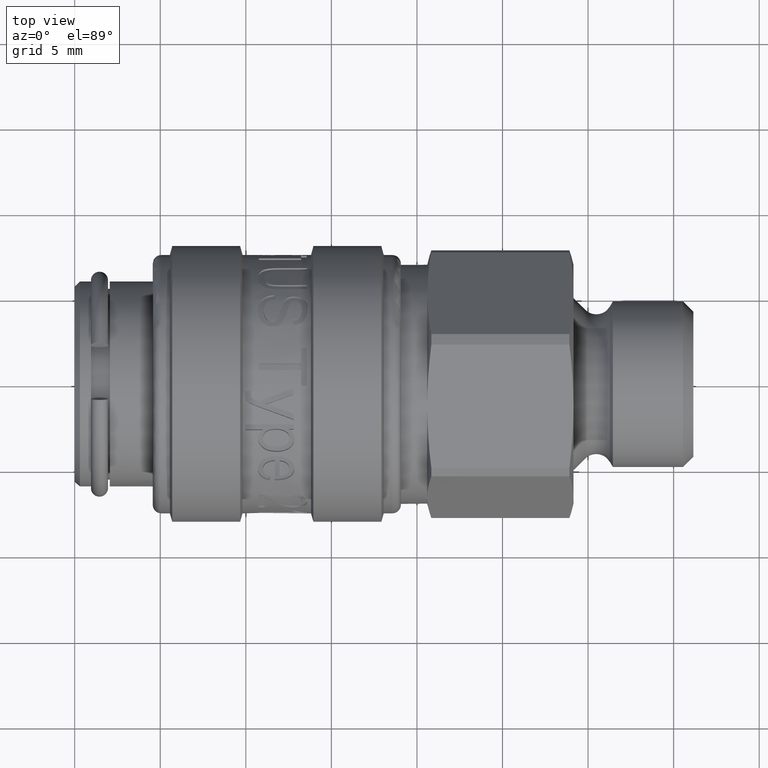
[diagram: clean part render]
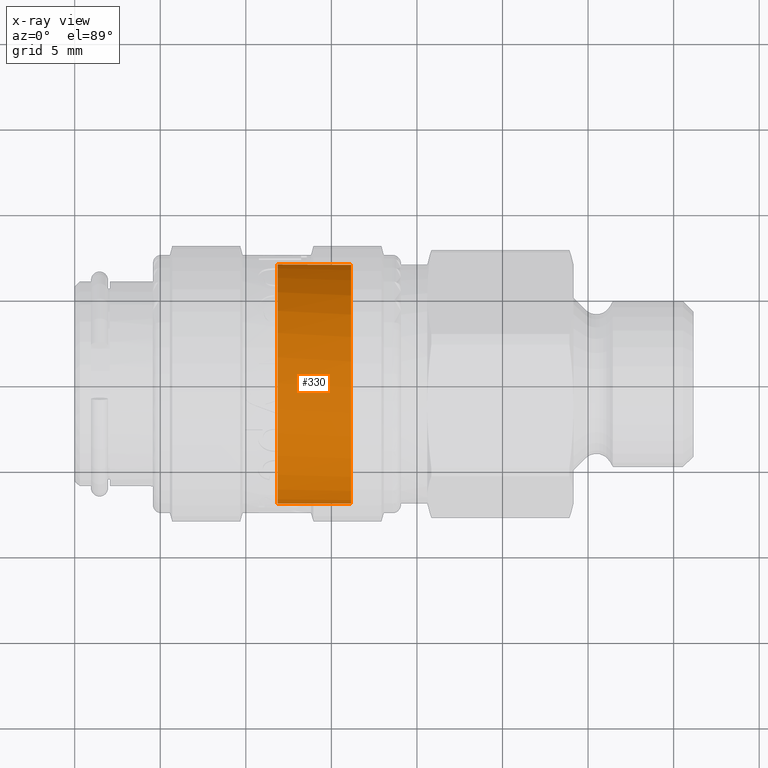
[diagram: x-ray — body ghosted, one internal face saturated and labeled with its STEP entity id]
A machine part, top view, then the same camera in x-ray: the body is ghosted and one INTERNAL B-rep face — a face not visible from any outside direction — is saturated and labeled: STEP entity #330.
In plain terms, the highlighted cylindrical surface (bore or boss wall) has radius 7 mm, axis along (1, 0, 0).
Its self-contained STEP definition (entity closure, byte-faithful):
#303=CARTESIAN_POINT('',(15.460000000000003,0.0,0.0));
#304=DIRECTION('',(1.0,0.0,0.0));
#305=DIRECTION('',(0.0,0.832540881005212,-0.553963610226398));
#306=AXIS2_PLACEMENT_3D('',#303,#304,#305);
#307=CYLINDRICAL_SURFACE('',#306,7.000000000000001);
#308=CARTESIAN_POINT('',(11.860000000000001,5.827786167036486,-3.877745271584789));
#309=VERTEX_POINT('',#308);
#310=CARTESIAN_POINT('',(11.860000000000001,0.0,0.0));
#311=DIRECTION('',(1.0,0.0,0.0));
#312=DIRECTION('',(0.0,0.832540881005212,-0.553963610226398));
#313=AXIS2_PLACEMENT_3D('',#310,#311,#312);
#314=CIRCLE('',#313,7.0);
#315=EDGE_CURVE('',#309,#309,#314,.T.);
#316=ORIENTED_EDGE('',*,*,#315,.F.);
#317=EDGE_LOOP('',(#316));
#318=FACE_OUTER_BOUND('',#317,.T.);
#319=CARTESIAN_POINT('',(16.149999999999999,6.641463794761066,-2.211551189296318));
#320=VERTEX_POINT('',#319);
#321=CARTESIAN_POINT('',(16.149999999999999,0.0,0.0));
#322=DIRECTION('',(-1.0,0.0,0.0));
#323=DIRECTION('',(0.0,0.948780542108724,-0.315935884185188));
#324=AXIS2_PLACEMENT_3D('',#321,#322,#323);
#325=CIRCLE('',#324,7.000000000000001);
#326=EDGE_CURVE('',#320,#320,#325,.T.);
#327=ORIENTED_EDGE('',*,*,#326,.F.);
#328=EDGE_LOOP('',(#327));
#329=FACE_BOUND('',#328,.T.);
#330=ADVANCED_FACE('',(#318,#329),#307,.F.);